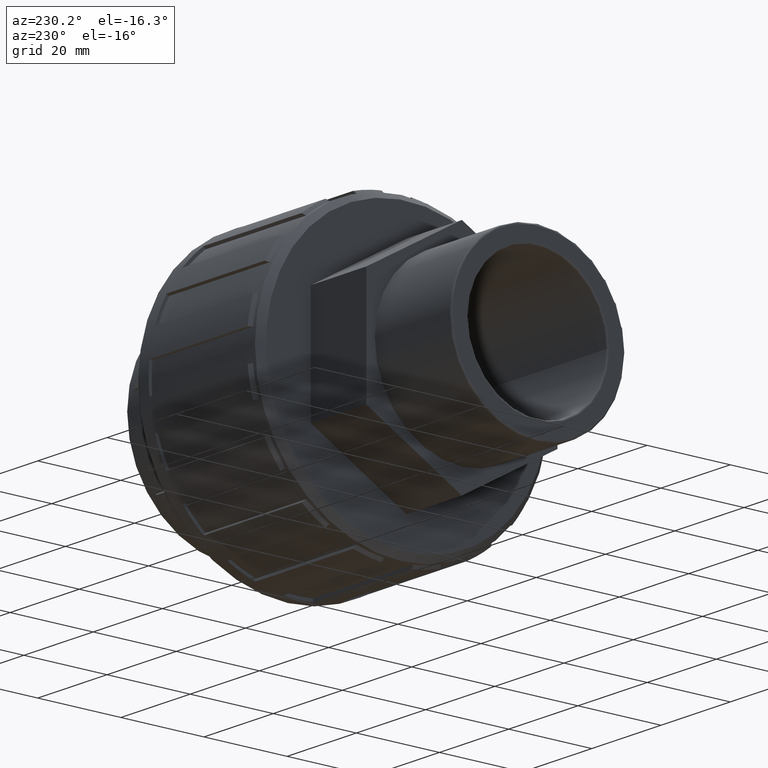
[diagram: clean part render]
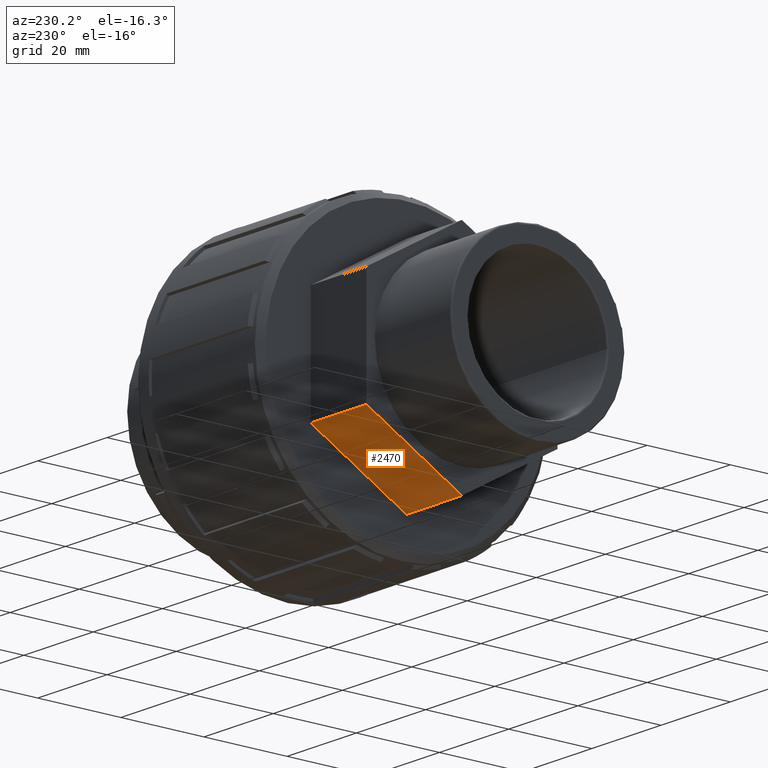
[diagram: same view with one face highlighted and labeled with its STEP entity id]
A machine part, auxiliary view. The second image highlights one B-rep face of the part: STEP entity #2470.
In plain terms, the highlighted planar face has unit normal (-0, 0.5, -0.866).
Its self-contained STEP definition (entity closure, byte-faithful):
#224=FACE_OUTER_BOUND('',#364,.T.);
#364=EDGE_LOOP('',(#1644,#1645,#1646,#1647));
#531=LINE('',#3686,#773);
#532=LINE('',#3688,#774);
#533=LINE('',#3690,#775);
#534=LINE('',#3691,#776);
#773=VECTOR('',#2896,26.5581123827228);
#774=VECTOR('',#2897,16.);
#775=VECTOR('',#2898,26.5581123827228);
#776=VECTOR('',#2899,16.);
#1014=VERTEX_POINT('',#3684);
#1015=VERTEX_POINT('',#3685);
#1016=VERTEX_POINT('',#3687);
#1017=VERTEX_POINT('',#3689);
#1270=EDGE_CURVE('',#1014,#1015,#531,.T.);
#1271=EDGE_CURVE('',#1016,#1014,#532,.T.);
#1272=EDGE_CURVE('',#1016,#1017,#533,.T.);
#1273=EDGE_CURVE('',#1017,#1015,#534,.T.);
#1644=ORIENTED_EDGE('',*,*,#1270,.F.);
#1645=ORIENTED_EDGE('',*,*,#1271,.F.);
#1646=ORIENTED_EDGE('',*,*,#1272,.T.);
#1647=ORIENTED_EDGE('',*,*,#1273,.T.);
#2384=PLANE('',#2612);
#2470=ADVANCED_FACE('',(#224),#2384,.T.);
#2612=AXIS2_PLACEMENT_3D('',#3683,#2894,#2895);
#2894=DIRECTION('center_axis',(-9.25185853854293E-17,0.5,-0.866025403784439));
#2895=DIRECTION('ref_axis',(0.,0.866025403784439,0.5));
#2896=DIRECTION('',(-1.59086285808736E-16,0.866025403784439,0.5));
#2897=DIRECTION('',(1.,1.85037170770859E-16,0.));
#2898=DIRECTION('',(-1.59086285808736E-16,0.866025403784439,0.5));
#2899=DIRECTION('',(1.,1.85037170770859E-16,0.));
#3683=CARTESIAN_POINT('Origin',(-22.5,-6.73320546670669E-14,-26.5581123827228));
#3684=CARTESIAN_POINT('',(-6.49999999999999,-6.43714599347332E-14,-26.5581123827228));
#3685=CARTESIAN_POINT('',(-6.5,22.9999999999999,-13.2790561913614));
#3686=CARTESIAN_POINT('',(-6.49999999999999,-2.87500000000004,-28.2179944066429));
#3687=CARTESIAN_POINT('',(-22.5,-6.73320546670669E-14,-26.5581123827228));
#3688=CARTESIAN_POINT('',(-22.5,-6.73320546670669E-14,-26.5581123827228));
#3689=CARTESIAN_POINT('',(-22.5,22.9999999999999,-13.2790561913614));
#3690=CARTESIAN_POINT('',(-22.5,-6.73320546670669E-14,-26.5581123827228));
#3691=CARTESIAN_POINT('',(-22.5,22.9999999999999,-13.2790561913614));